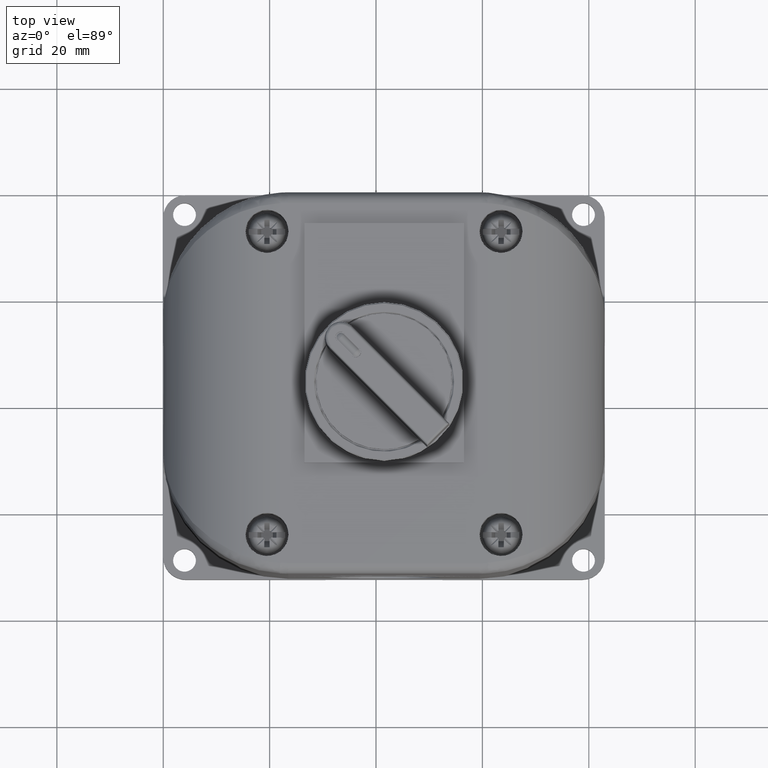
[diagram: clean part render]
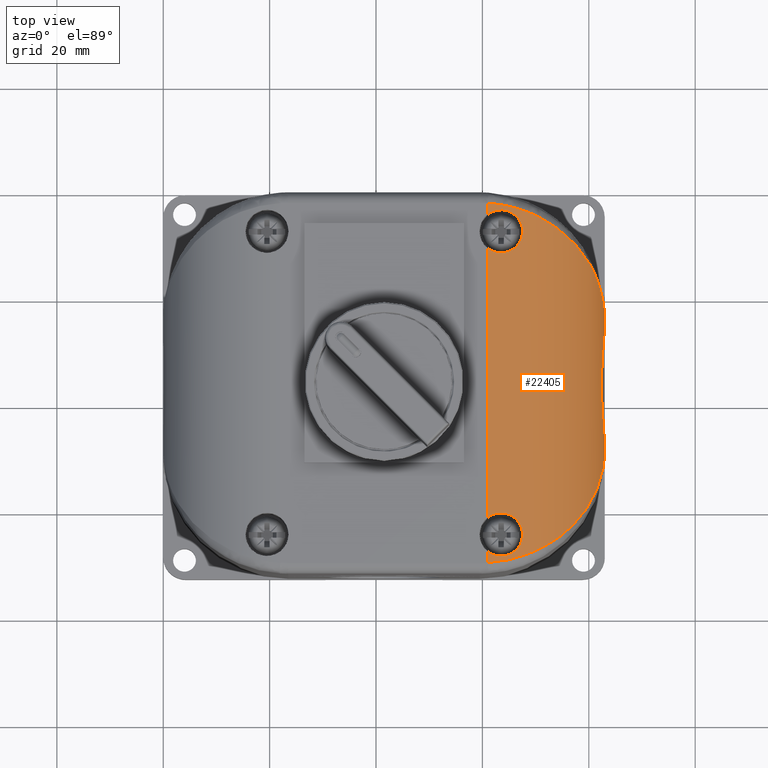
[diagram: same view with one face highlighted and labeled with its STEP entity id]
A machine part, top view. The second image highlights one B-rep face of the part: STEP entity #22405.
In plain terms, the highlighted cylindrical surface (partial cylindrical patch) has radius 22 mm, axis along (0, 1, 0).
Its self-contained STEP definition (entity closure, byte-faithful):
#99 = B_SPLINE_CURVE_WITH_KNOTS ( 'NONE', 3,
 ( #10861, #20196, #14949, #3558, #18802, #1574, #9255, #18558, #24516, #18324, #16689, #3207, #24278, #1457, #5411, #16813, #11089, #12711, #22547, #18677, #13071, #20670, #18443, #1343, #1826, #16933 ),
 .UNSPECIFIED., .F., .F.,
 ( 4, 2, 2, 2, 2, 2, 2, 2, 2, 2, 2, 2, 4 ),
 ( 1.334722892048455470E-16, 0.001134861824668698810, 0.001702292737002971453, 0.002269723649337223714, 0.002837154561671475974, 0.003404585474005728668, 0.004539447298674233189, 0.005106878211008509735, 0.005674309123342786282, 0.006809170948011322895, 0.007944032772679857773, 0.008511463685014125646, 0.009078894597348393519 ),
 .UNSPECIFIED. ) ;
#176 = CARTESIAN_POINT ( 'NONE',  ( 3.265404575038634238, -0.9051935461866198462, 1.295541807410427904 ) ) ;
#224 = CARTESIAN_POINT ( 'NONE',  ( 3.246916240781681395, -1.268746269353562051, 1.421073909155595949 ) ) ;
#298 = CARTESIAN_POINT ( 'NONE',  ( 3.265698535053056073, -0.9152756871707017350, 1.291380827273003185 ) ) ;
#339 = B_SPLINE_CURVE_WITH_KNOTS ( 'NONE', 3,
 ( #665, #4859, #13798, #7976, #19992, #8224, #18238, #6353, #13677, #1253, #23257, #15777, #21984, #20115, #19389, #23368, #3008, #8807, #3127, #6118, #13551, #10538, #11682, #19271, #17525, #21385 ),
 .UNSPECIFIED., .F., .F.,
 ( 4, 2, 2, 2, 2, 2, 2, 2, 2, 2, 2, 2, 4 ),
 ( 1.334722892048455470E-16, 0.001134861824668662381, 0.001702292737002935675, 0.002269723649337189019, 0.002837154561671442147, 0.003404585474005695708, 0.004539447298674204566, 0.005106878211008480245, 0.005674309123342755924, 0.006809170948011302946, 0.007944032772679849100, 0.008511463685014123912, 0.009078894597348396989 ),
 .UNSPECIFIED. ) ;
#417 = CARTESIAN_POINT ( 'NONE',  ( 3.261533460408405638, -0.8520517123228971146, 1.335593132237050451 ) ) ;
#665 = CARTESIAN_POINT ( 'NONE',  ( 2.401574803149604254, -0.1756531276583662704, 2.098425196850787433 ) ) ;
#746 = VERTEX_POINT ( 'NONE', #7047 ) ;
#787 = CARTESIAN_POINT ( 'NONE',  ( 3.211403584411341772, -0.6499550670571786481, 1.539495812780744544 ) ) ;
#834 = CARTESIAN_POINT ( 'NONE',  ( 3.224408995451466087, -2.161029592972630642, 1.502804874604040553 ) ) ;
#914 = CARTESIAN_POINT ( 'NONE',  ( 3.014916225607195521, -0.3572907007955891667, 1.844476032022297041 ) ) ;
#998 = DIRECTION ( 'NONE',  ( -0.000000000000000000, 1.000000000000000000, 0.000000000000000000 ) ) ;
#1036 = EDGE_CURVE ( 'NONE', #10325, #4337, #99, .T. ) ;
#1038 = CARTESIAN_POINT ( 'NONE',  ( 3.253581560407081241, -0.7972325579423396036, 1.388155249814208902 ) ) ;
#1085 = CARTESIAN_POINT ( 'NONE',  ( 3.262143839381956845, -1.988699912605852438, 1.330589693092279147 ) ) ;
#1137 = EDGE_CURVE ( 'NONE', #19132, #4094, #9860, .T. ) ;
#1162 = CARTESIAN_POINT ( 'NONE',  ( 3.116581200251230310, -0.4752133043386753131, 1.721821775155810252 ) ) ;
#1207 = CARTESIAN_POINT ( 'NONE',  ( 3.264538597260197683, -1.958666754404544852, 1.306411850927976293 ) ) ;
#1253 = CARTESIAN_POINT ( 'NONE',  ( 2.513393136299193920, -0.1420740433886582277, 2.091209826527814730 ) ) ;
#1291 = CARTESIAN_POINT ( 'NONE',  ( 3.234947611988189031, -0.7185866174914208315, 1.468282772683580095 ) ) ;
#1343 = CARTESIAN_POINT ( 'NONE',  ( 2.658679138886878235, -2.530287315607976151, 2.059386875227419811 ) ) ;
#1457 = CARTESIAN_POINT ( 'NONE',  ( 2.576593409757097053, -2.405267626370858114, 2.080584779871273771 ) ) ;
#1487 = CARTESIAN_POINT ( 'NONE',  ( 2.722660372092903902, -2.679450240766227065, 2.036873089652111002 ) ) ;
#1511 = CARTESIAN_POINT ( 'NONE',  ( 2.542669575816503880, -0.4553276970491240694, 2.086983220119175808 ) ) ;
#1574 = CARTESIAN_POINT ( 'NONE',  ( 2.468875781667798641, -2.388643250060210832, 2.095836973709894302 ) ) ;
#1595 = CARTESIAN_POINT ( 'NONE',  ( 3.084950974714748551, -2.413793780902832697, 1.766651555993284273 ) ) ;
#1616 = CARTESIAN_POINT ( 'NONE',  ( 2.401574803149604254, -0.1756531276583662704, 2.098425196850787433 ) ) ;
#1617 = DIRECTION ( 'NONE',  ( -0.000000000000000000, 1.000000000000000000, 0.000000000000000000 ) ) ;
#1643 = CARTESIAN_POINT ( 'NONE',  ( 2.784434683786902731, -0.1951204018283026476, 2.009214132178566370 ) ) ;
#1729 = CARTESIAN_POINT ( 'NONE',  ( 3.048866991096050860, -2.453471018583604391, 1.807800523673638304 ) ) ;
#1803 = CARTESIAN_POINT ( 'NONE',  ( 3.264304003964328516, -1.825826770599808135, 1.312786665741844772 ) ) ;
#1826 = CARTESIAN_POINT ( 'NONE',  ( 2.659199162521964421, -2.537710840295322345, 2.059224326939192551 ) ) ;
#1851 = CARTESIAN_POINT ( 'NONE',  ( 3.209237448971808071, -2.201847995331116969, 1.545147290964657971 ) ) ;
#1974 = CARTESIAN_POINT ( 'NONE',  ( 3.208178408958344718, -2.204469314860726392, 1.547873401822762229 ) ) ;
#1981 = CARTESIAN_POINT ( 'NONE',  ( 3.261931588086456557, -1.053020132146092358, 1.333929234802425423 ) ) ;
#1996 = CARTESIAN_POINT ( 'NONE',  ( 2.617014466615705359, -0.4093696796499521340, 2.071218146206070365 ) ) ;
#2017 = LINE ( 'NONE', #9560, #19320 ) ;
#2106 = CARTESIAN_POINT ( 'NONE',  ( 3.244141831481595961, -1.345329254579085587, 1.432994763971830787 ) ) ;
#2184 = CARTESIAN_POINT ( 'NONE',  ( 3.265559621595654161, -0.9100975798091842650, 1.293372028446158506 ) ) ;
#2227 = CARTESIAN_POINT ( 'NONE',  ( 3.261125659975437685, -1.997856196391115446, 1.338934188117357316 ) ) ;
#2289 = DIRECTION ( 'NONE',  ( 0.000000000000000000, 1.000000000000000000, 0.000000000000000000 ) ) ;
#2352 = CARTESIAN_POINT ( 'NONE',  ( 3.249418618692938132, -2.070010648337430759, 1.409387014528677984 ) ) ;
#2423 = CARTESIAN_POINT ( 'NONE',  ( 3.260284757183267601, -0.8407823607793120102, 1.345854991002045864 ) ) ;
#2599 = CARTESIAN_POINT ( 'NONE',  ( 3.240120900210513799, -2.109311697198949176, 1.449499018110503190 ) ) ;
#2673 = CARTESIAN_POINT ( 'NONE',  ( 2.984665937025283711, -0.3297389721143291763, 1.872906376220347058 ) ) ;
#2739 = EDGE_CURVE ( 'NONE', #9817, #19132, #21156, .T. ) ;
#2789 = CARTESIAN_POINT ( 'NONE',  ( 3.255256975148223653, -0.8066475089956013367, 1.378804314267621844 ) ) ;
#2915 = CARTESIAN_POINT ( 'NONE',  ( 3.234292338125978272, -0.7163636040684386863, 1.470576650997017065 ) ) ;
#2985 = CARTESIAN_POINT ( 'NONE',  ( 2.630854445261456398, -2.636221148376215684, 2.067537269189749782 ) ) ;
#3008 = CARTESIAN_POINT ( 'NONE',  ( 2.601015624993987974, -0.1776850800264913322, 2.075169313886291889 ) ) ;
#3039 = CARTESIAN_POINT ( 'NONE',  ( 3.250699855379799441, -0.7823085943282255261, 1.403129808930588363 ) ) ;
#3127 = CARTESIAN_POINT ( 'NONE',  ( 2.626900827036907859, -0.2037001733549982929, 2.068643163140310381 ) ) ;
#3156 = CARTESIAN_POINT ( 'NONE',  ( 3.160107092039146526, -0.5436324238325108693, 1.650454988016291757 ) ) ;
#3207 = CARTESIAN_POINT ( 'NONE',  ( 2.542515016304399023, -2.390873887159418398, 2.087007149983038268 ) ) ;
#3279 = CARTESIAN_POINT ( 'NONE',  ( 2.722954377266189052, -0.1664587572626944900, 2.037226366823465806 ) ) ;
#3342 = CARTESIAN_POINT ( 'NONE',  ( 2.656561117412512107, -2.575012676745648044, 2.060042306304008974 ) ) ;
#3356 = CARTESIAN_POINT ( 'NONE',  ( 2.707718693562267909, -2.685513913119756957, 2.042673445797811738 ) ) ;
#3399 = CARTESIAN_POINT ( 'NONE',  ( 2.605673103801147583, -0.1267654090364580821, 2.074035419141702974 ) ) ;
#3469 = CARTESIAN_POINT ( 'NONE',  ( 3.044716291670299668, -2.457956253068044994, 1.812449552676164588 ) ) ;
#3558 = CARTESIAN_POINT ( 'NONE',  ( 2.447196047995984447, -2.394557187080533112, 2.097250826054517070 ) ) ;
#3580 = CARTESIAN_POINT ( 'NONE',  ( 3.052408395411687625, -2.449601166355237059, 1.803787913149768940 ) ) ;
#3711 = CARTESIAN_POINT ( 'NONE',  ( 3.014425527166082919, -2.488940260339953525, 1.844503334232135972 ) ) ;
#3786 = EDGE_CURVE ( 'NONE', #9817, #746, #14134, .T. ) ;
#3840 = CARTESIAN_POINT ( 'NONE',  ( 3.252764249701070032, -1.175578275525553051, 1.392656594265216929 ) ) ;
#3858 = CARTESIAN_POINT ( 'NONE',  ( 2.476358661653605520, -0.4588906863112868217, 2.095222525144633252 ) ) ;
#3888 = ORIENTED_EDGE ( 'NONE', *, *, #16811, .T. ) ;
#3912 = CARTESIAN_POINT ( 'NONE',  ( 3.264741905503198982, -0.8910037520799722888, 1.304010267330316886 ) ) ;
#3961 = CARTESIAN_POINT ( 'NONE',  ( 3.243986775593869165, -1.501315823974023411, 1.433743545148280063 ) ) ;
#4094 = VERTEX_POINT ( 'NONE', #20325 ) ;
#4150 = AXIS2_PLACEMENT_3D ( 'NONE', #23000, #2289, #9826 ) ;
#4284 = CARTESIAN_POINT ( 'NONE',  ( 3.261388886750414606, -0.8507358148511436902, 1.336788259634980269 ) ) ;
#4330 = CARTESIAN_POINT ( 'NONE',  ( 3.246325512263653845, -2.084127772751617869, 1.423735575630447281 ) ) ;
#4337 = VERTEX_POINT ( 'NONE', #9546 ) ;
#4400 = CARTESIAN_POINT ( 'NONE',  ( 3.265521307670927076, -0.9088467583060406696, 1.293910971693332801 ) ) ;
#4449 = CARTESIAN_POINT ( 'NONE',  ( 3.260363138770068225, -2.004378109624662674, 1.344950360793587985 ) ) ;
#4530 = CARTESIAN_POINT ( 'NONE',  ( 3.201034646951566032, -0.6240027018628380162, 1.566555334427148116 ) ) ;
#4579 = CARTESIAN_POINT ( 'NONE',  ( 3.250246559280750791, -2.066042603269500066, 1.405366622927611608 ) ) ;
#4651 = CARTESIAN_POINT ( 'NONE',  ( 3.220716979347994169, -0.6746482443477958002, 1.513786743370503451 ) ) ;
#4768 = CARTESIAN_POINT ( 'NONE',  ( 3.210606187184909643, -0.6479465277111584598, 1.541589747267571919 ) ) ;
#4813 = CARTESIAN_POINT ( 'NONE',  ( 3.264778051677498460, -1.954735588945603730, 1.303618008707217335 ) ) ;
#4844 = CARTESIAN_POINT ( 'NONE',  ( 2.535560287805067148, -2.736236682919041652, 2.088165360058191755 ) ) ;
#4859 = CARTESIAN_POINT ( 'NONE',  ( 2.413458876351760374, -0.1663267315003349733, 2.098425196850394414 ) ) ;
#4895 = CARTESIAN_POINT ( 'NONE',  ( 3.248232437310654142, -0.7702737956006510123, 1.415288741448876397 ) ) ;
#4960 = CARTESIAN_POINT ( 'NONE',  ( 2.542669575816504324, -2.699422185238101513, 2.086983220119176252 ) ) ;
#4972 = CARTESIAN_POINT ( 'NONE',  ( 2.775238489599895608, -2.655617235931694964, 2.013682297853302661 ) ) ;
#5018 = CARTESIAN_POINT ( 'NONE',  ( 3.054198358625548337, -0.3984575900242663948, 1.801742989362116631 ) ) ;
#5175 = CARTESIAN_POINT ( 'NONE',  ( 3.263786859148512853, -1.969742139657295388, 1.314726999360762871 ) ) ;
#5312 = CARTESIAN_POINT ( 'NONE',  ( 2.468932394693459376, -2.701699833163988096, 2.095832879722906661 ) ) ;
#5322 = CARTESIAN_POINT ( 'NONE',  ( 2.779802317235763098, -2.653377417332058563, 2.011479014497544515 ) ) ;
#5345 = CARTESIAN_POINT ( 'NONE',  ( 2.401574803149604254, -0.4264879033823556487, 2.098425196850787433 ) ) ;
#5411 = CARTESIAN_POINT ( 'NONE',  ( 2.582937071548314645, -2.408940647676415470, 2.079247596894479244 ) ) ;
#5573 = CARTESIAN_POINT ( 'NONE',  ( 2.654995267344636201, -0.3381958324352756229, 2.060525093719621559 ) ) ;
#5596 = CARTESIAN_POINT ( 'NONE',  ( 2.883935232303584506, -0.2520787802517179266, 1.952291133547743751 ) ) ;
#5679 = CARTESIAN_POINT ( 'NONE',  ( 3.114680695427916923, -2.375402680520445564, 1.726534015020033008 ) ) ;
#5684 = CARTESIAN_POINT ( 'NONE',  ( 3.250308422935292541, -1.634011347818775439, 1.405183800287110873 ) ) ;
#5701 = CARTESIAN_POINT ( 'NONE',  ( 2.491117104733515664, -0.4603959840040371398, 2.093816182454376396 ) ) ;
#5723 = ORIENTED_EDGE ( 'NONE', *, *, #24099, .T. ) ;
#5753 = CARTESIAN_POINT ( 'NONE',  ( 3.265609840346506143, -0.9118371909029657774, 1.292659217011799422 ) ) ;
#5821 = CARTESIAN_POINT ( 'NONE',  ( 2.630854445261456398, -0.3921266601872400170, 2.067537269189749782 ) ) ;
#5875 = CARTESIAN_POINT ( 'NONE',  ( 3.265845720700356392, -0.9238149993118608405, 1.289187725183639222 ) ) ;
#5903 = LINE ( 'NONE', #13455, #11948 ) ;
#5984 = FACE_OUTER_BOUND ( 'NONE', #22452, .T. ) ;
#6118 = CARTESIAN_POINT ( 'NONE',  ( 2.642767798214620711, -0.2290015350871678623, 2.064206118165317960 ) ) ;
#6124 = CARTESIAN_POINT ( 'NONE',  ( 3.265755436328508399, -0.9181531538233389522, 1.290537537307365534 ) ) ;
#6353 = CARTESIAN_POINT ( 'NONE',  ( 2.490967049264921851, -0.1417528788743487311, 2.093831852209592448 ) ) ;
#6361 = CARTESIAN_POINT ( 'NONE',  ( 3.250571372088789435, -0.7816781633838439936, 1.403766330521868833 ) ) ;
#6490 = CARTESIAN_POINT ( 'NONE',  ( 3.145488084176855992, -0.5192426645756701431, 1.675898917381087871 ) ) ;
#6609 = CARTESIAN_POINT ( 'NONE',  ( 3.146442623731326549, -0.5207803344757439001, 1.674295236152615329 ) ) ;
#6684 = CARTESIAN_POINT ( 'NONE',  ( 2.755989081656508688, -2.664787013593603149, 2.022667130593615248 ) ) ;
#6730 = CARTESIAN_POINT ( 'NONE',  ( 2.958847662260158717, -0.3078760174144264949, 1.895378531863006977 ) ) ;
#6812 = CARTESIAN_POINT ( 'NONE',  ( 2.883865762059846904, -2.593812554369276491, 1.951880499736209584 ) ) ;
#6861 = CARTESIAN_POINT ( 'NONE',  ( 3.251578865151983244, -0.7866878760425995987, 1.398715638915980275 ) ) ;
#6926 = CARTESIAN_POINT ( 'NONE',  ( 2.413450445584815363, -2.679902171422722912, 2.098425196850393970 ) ) ;
#6936 = CARTESIAN_POINT ( 'NONE',  ( 2.600799967766164400, -2.720834575484453399, 2.075202081263997744 ) ) ;
#6969 = EDGE_CURVE ( 'NONE', #4094, #15154, #7923, .T. ) ;
#6987 = CARTESIAN_POINT ( 'NONE',  ( 2.603759304652442541, -0.1262422395406327391, 2.074497152838111536 ) ) ;
#7034 = CARTESIAN_POINT ( 'NONE',  ( 3.265459950832562352, -1.939271766175720169, 1.294765558874596323 ) ) ;
#7047 = CARTESIAN_POINT ( 'NONE',  ( 2.401574803149604254, -2.670582391571332259, 2.098425196850787433 ) ) ;
#7055 = B_SPLINE_CURVE_WITH_KNOTS ( 'NONE', 3,
 ( #19277, #15668, #5875, #6124, #298, #5753, #2184, #23265, #4400, #11931, #176, #13305, #23146, #23014, #3912, #11439, #21022, #7743, #9961, #22899, #19158, #7858, #9839, #15414, #13558, #17400, #417, #15542, #13686, #4284, #19396, #2423, #12429, #12293, #2789, #1038, #12547, #6861, #10322, #3039, #6361, #14293, #18271, #4895, #16155, #13924, #23375, #22016, #1291, #2915, #15784, #8347, #20148, #21529, #4651, #20024, #23629, #17774, #787, #21650, #4768, #4530, #10690, #15902, #21886, #3156, #10572, #12057, #18145, #6609, #23504, #6490, #12173, #19893, #1162, #8711, #16277, #14051, #19775, #23752, #14433, #23879, #5018, #17897, #8595, #19655, #914, #2673, #10449, #6730, #8471, #16029, #10203, #14173, #21766, #18024, #22382, #22502, #5596, #20391, #10932, #7345, #8842, #24116, #20746, #1643, #20615, #22141, #18627, #14789, #3279, #16640, #18751, #13023, #20263, #12788, #10815, #3399, #6987, #14666, #7225, #18870, #13148 ),
 .UNSPECIFIED., .F., .F.,
 ( 4, 2, 1, 1, 1, 2, 2, 2, 1, 1, 1, 2, 2, 2, 2, 1, 1, 1, 1, 2, 2, 2, 2, 1, 1, 1, 1, 2, 2, 2, 1, 1, 1, 2, 2, 2, 1, 1, 1, 2, 2, 2, 2, 1, 1, 1, 1, 2, 2, 2, 2, 1, 1, 1, 1, 2, 2, 2, 2, 1, 1, 1, 1, 2, 2, 2, 2, 1, 1, 1, 1, 2, 2, 2, 2, 1, 1, 1, 2, 2, 4 ),
 ( 0.000000000000000000, 0.007812499999999616626, 0.01171874999999955765, 0.01367187499999961316, 0.01464843749999974673, 0.01513671874999969989, 0.01562499999999965306, 0.02343749999999873712, 0.02734374999999836936, 0.02929687499999832773, 0.03027343749999840405, 0.03076171874999851855, 0.03124999999999863304, 0.04687499999999368561, 0.05468749999999134026, 0.05859374999999017453, 0.06054687499998955003, 0.06152343749998896716, 0.06201171874998890471, 0.06225585937498888389, 0.06249999999998885614, 0.09374999999998176459, 0.1093749999999779898, 0.1171874999999759498, 0.1210937499999749783, 0.1230468749999744787, 0.1240234374999744510, 0.1245117187499746869, 0.1249999999999749090, 0.1562499999999825140, 0.1718749999999861222, 0.1796874999999878431, 0.1835937499999887035, 0.1855468749999893141, 0.1874999999999899247, 0.2187500000000020539, 0.2343750000000082712, 0.2421875000000111855, 0.2460937500000128508, 0.2480468750000136835, 0.2500000000000145439, 0.3125000000000516254, 0.3437500000000699996, 0.3593750000000791589, 0.3671875000000837663, 0.3710937500000858758, 0.3730468750000869305, 0.3740234375000873190, 0.3750000000000877076, 0.4375000000001207923, 0.4687500000001373901, 0.4843750000001452172, 0.4921875000001495470, 0.4960937500001517675, 0.4980468750001527667, 0.4990234375001532108, 0.5000000000001536549, 0.5625000000001764144, 0.5937500000001879608, 0.6093750000001940670, 0.6171875000001967315, 0.6210937500001980638, 0.6230468750001987299, 0.6240234375001986189, 0.6250000000001986189, 0.6875000000001706413, 0.7187500000001570966, 0.7343750000001506573, 0.7421875000001475486, 0.7460937500001454392, 0.7480468750001443290, 0.7490234375001438849, 0.7500000000001433298, 0.8125000000001204592, 0.8437500000001085798, 0.8593750000001025846, 0.8671875000000991429, 0.8710937500000973666, 0.8730468750000959233, 0.8750000000000944800, 1.000000000000000000 ),
 .UNSPECIFIED. ) ;
#7066 = CARTESIAN_POINT ( 'NONE',  ( 2.632260934178599410, -2.712335254165648468, 2.067728640422219488 ) ) ;
#7177 = CARTESIAN_POINT ( 'NONE',  ( 2.518881905125807119, -2.739415039935476415, 2.090609695621554298 ) ) ;
#7203 = CARTESIAN_POINT ( 'NONE',  ( 2.454388470373221054, -0.4540078010003020803, 2.096844251388313651 ) ) ;
#7225 = CARTESIAN_POINT ( 'NONE',  ( 2.535890333196159752, -0.1079068621314974025, 2.090628700056198497 ) ) ;
#7345 = CARTESIAN_POINT ( 'NONE',  ( 2.814071581677079159, -0.2105623829994623664, 1.993927688369900419 ) ) ;
#7422 = CARTESIAN_POINT ( 'NONE',  ( 3.051819117145103455, -2.450247614257250017, 1.804458290719974434 ) ) ;
#7489 = CARTESIAN_POINT ( 'NONE',  ( 3.256803343748177149, -1.725144759640337089, 1.370589834708397126 ) ) ;
#7541 = CARTESIAN_POINT ( 'NONE',  ( 3.254084758597642235, -1.157293033147775541, 1.385550100377879401 ) ) ;
#7559 = CARTESIAN_POINT ( 'NONE',  ( 2.656561117412511663, -0.3309181885566717662, 2.060042306304008974 ) ) ;
#7686 = CARTESIAN_POINT ( 'NONE',  ( 2.513299169312456449, -0.4600724146056892616, 2.091221580168188598 ) ) ;
#7743 = CARTESIAN_POINT ( 'NONE',  ( 3.264581076583841224, -0.8882596634098809396, 1.305915650481825230 ) ) ;
#7858 = CARTESIAN_POINT ( 'NONE',  ( 3.263037377680988005, -0.8673013707477652545, 1.322229943151677745 ) ) ;
#7904 = CARTESIAN_POINT ( 'NONE',  ( 3.261245495464170752, -1.996792885639098625, 1.337961924306562356 ) ) ;
#7923 = B_SPLINE_CURVE_WITH_KNOTS ( 'NONE', 3,
 ( #11193, #1803, #24493, #7489, #15040, #5684, #13237, #20831, #20955, #3961, #11483, #13358, #19077, #2106, #9644, #224, #24547, #3840, #7541, #18957, #15093, #1981, #22704, #9522 ),
 .UNSPECIFIED., .F., .F.,
 ( 4, 2, 2, 2, 2, 2, 2, 2, 2, 2, 2, 4 ),
 ( 0.000000000000000000, 0.002953563514493775903, 0.005907127028987551806, 0.007383908786234434120, 0.008860690543481316434, 0.01181425405797508106, 0.01329103581522197465, 0.01476781757246886650, 0.01772138108696266756, 0.01919816284420956809, 0.02067494460145647209, 0.02362850811595026967 ),
 .UNSPECIFIED. ) ;
#7976 = CARTESIAN_POINT ( 'NONE',  ( 2.447196047995985779, -0.1504626988915566677, 2.097250826054518402 ) ) ;
#8224 = CARTESIAN_POINT ( 'NONE',  ( 2.468875781667798197, -0.1445487618712342770, 2.095836973709894302 ) ) ;
#8279 = CARTESIAN_POINT ( 'NONE',  ( 3.227215193048561304, -2.152678028530991661, 1.494168895094552862 ) ) ;
#8347 = CARTESIAN_POINT ( 'NONE',  ( 3.233615857010765815, -0.7140855401026400262, 1.472927898648923595 ) ) ;
#8393 = CARTESIAN_POINT ( 'NONE',  ( 3.260879862321163891, -2.000003110569641862, 1.340904814431487235 ) ) ;
#8471 = CARTESIAN_POINT ( 'NONE',  ( 2.951007871570922259, -0.3015022192446490945, 1.901914107584226743 ) ) ;
#8550 = CARTESIAN_POINT ( 'NONE',  ( 2.435117163370285720, -2.751518809154368750, 2.098425196850393082 ) ) ;
#8589 = CARTESIAN_POINT ( 'NONE',  ( 2.401574803149604254, -2.419747615847342548, 2.098425196850787433 ) ) ;
#8595 = CARTESIAN_POINT ( 'NONE',  ( 3.053454056399406813, -0.3976380694145107975, 1.802594902865833237 ) ) ;
#8638 = CARTESIAN_POINT ( 'NONE',  ( 3.264479651567679941, -1.959621746129169617, 1.307095417525971470 ) ) ;
#8657 = CARTESIAN_POINT ( 'NONE',  ( 2.642616094427816975, -2.617495240237257548, 2.064249139571172620 ) ) ;
#8668 = CARTESIAN_POINT ( 'NONE',  ( 2.807871551076819294, -2.639464060688102354, 1.997775163397070175 ) ) ;
#8711 = CARTESIAN_POINT ( 'NONE',  ( 3.093515117220452471, -0.4448853754032575658, 1.753426634361375136 ) ) ;
#8775 = CARTESIAN_POINT ( 'NONE',  ( 2.454388470373222386, -2.698102289189279634, 2.096844251388315428 ) ) ;
#8791 = CARTESIAN_POINT ( 'NONE',  ( 2.401574803149606918, -2.753666616672483247, 2.098425196850393082 ) ) ;
#8807 = CARTESIAN_POINT ( 'NONE',  ( 2.617425922562789609, -0.1924681156977341157, 2.071173551909853749 ) ) ;
#8842 = CARTESIAN_POINT ( 'NONE',  ( 2.804378162587062739, -0.2053324363684312093, 1.999124064514116617 ) ) ;
#8903 = CARTESIAN_POINT ( 'NONE',  ( 2.611819372911933002, -2.658828989312869151, 2.072539602161938443 ) ) ;
#8972 = ORIENTED_EDGE ( 'NONE', *, *, #11119, .T. ) ;
#9024 = CARTESIAN_POINT ( 'NONE',  ( 2.600885748644020001, -2.668656178478068686, 2.075200010190962008 ) ) ;
#9085 = ORIENTED_EDGE ( 'NONE', *, *, #6969, .T. ) ;
#9148 = CARTESIAN_POINT ( 'NONE',  ( 3.154495371393710723, -2.312969503172205954, 1.661192135817041171 ) ) ;
#9150 = ORIENTED_EDGE ( 'NONE', *, *, #2739, .T. ) ;
#9255 = CARTESIAN_POINT ( 'NONE',  ( 2.476188193641866153, -2.387369856942917146, 2.095237368245719711 ) ) ;
#9514 = CARTESIAN_POINT ( 'NONE',  ( 3.210155764082456287, -2.199556267369148888, 1.542764493355562427 ) ) ;
#9522 = CARTESIAN_POINT ( 'NONE',  ( 3.265874923253243356, -0.9893373802624196856, 1.288735238603178734 ) ) ;
#9546 = CARTESIAN_POINT ( 'NONE',  ( 2.659199162521963977, -2.545165003709337626, 2.059224326939192551 ) ) ;
#9547 = CARTESIAN_POINT ( 'NONE',  ( 3.265874923253243356, -0.9893373802624196856, 1.288735238603178734 ) ) ;
#9560 = CARTESIAN_POINT ( 'NONE',  ( 2.401574803149606474, -1.423117759614849209, 2.098425196850393970 ) ) ;
#9644 = CARTESIAN_POINT ( 'NONE',  ( 3.244713668635756942, -1.326072069829616673, 1.430598802716653850 ) ) ;
#9817 = VERTEX_POINT ( 'NONE', #16174 ) ;
#9826 = DIRECTION ( 'NONE',  ( 0.000000000000000000, 0.000000000000000000, 1.000000000000000000 ) ) ;
#9839 = CARTESIAN_POINT ( 'NONE',  ( 3.262749508385140551, -0.8640902287971231610, 1.324955283225414115 ) ) ;
#9860 = LINE ( 'NONE', #15434, #11107 ) ;
#9887 = CARTESIAN_POINT ( 'NONE',  ( 3.250144418260618728, -2.066536986669454290, 1.405867196300893296 ) ) ;
#9961 = CARTESIAN_POINT ( 'NONE',  ( 3.264563313089420049, -0.8879660592286553467, 1.306123470585642377 ) ) ;
#10019 = CARTESIAN_POINT ( 'NONE',  ( 3.232943951292965412, -2.134324958313053688, 1.475239059624427140 ) ) ;
#10135 = CARTESIAN_POINT ( 'NONE',  ( 3.261304656953763814, -1.996263766847401255, 1.337479056268163102 ) ) ;
#10181 = VERTEX_POINT ( 'NONE', #11920 ) ;
#10203 = CARTESIAN_POINT ( 'NONE',  ( 2.937140016935576803, -0.2906629795228685698, 1.913001011888871616 ) ) ;
#10251 = CARTESIAN_POINT ( 'NONE',  ( 3.214564557510352749, -2.188497527589314817, 1.531267943547761634 ) ) ;
#10322 = CARTESIAN_POINT ( 'NONE',  ( 3.250996723530608090, -0.7837747805942159030, 1.401650513134651943 ) ) ;
#10325 = VERTEX_POINT ( 'NONE', #8589 ) ;
#10449 = CARTESIAN_POINT ( 'NONE',  ( 2.974422445267385751, -0.3208292673541958684, 1.882078439005523851 ) ) ;
#10494 = CARTESIAN_POINT ( 'NONE',  ( 3.265411628674960820, -1.940672388845533058, 1.295431726232852077 ) ) ;
#10511 = CARTESIAN_POINT ( 'NONE',  ( 2.582969346292059321, -2.681368057654125892, 2.079240498308626339 ) ) ;
#10538 = CARTESIAN_POINT ( 'NONE',  ( 2.655007758894980086, -0.2639892569860727844, 2.060521301903373903 ) ) ;
#10572 = CARTESIAN_POINT ( 'NONE',  ( 3.155687434080496345, -0.5360140322544735270, 1.658404576001429431 ) ) ;
#10635 = CARTESIAN_POINT ( 'NONE',  ( 2.659199162521964421, -2.552612788435690394, 2.059224326939192107 ) ) ;
#10690 = CARTESIAN_POINT ( 'NONE',  ( 3.190851031137635907, -0.6016775371080932411, 1.589864798488252573 ) ) ;
#10693 = VERTEX_POINT ( 'NONE', #21017 ) ;
#10815 = CARTESIAN_POINT ( 'NONE',  ( 2.608543182956537976, -0.1275546363680228057, 2.073337789469105186 ) ) ;
#10861 = CARTESIAN_POINT ( 'NONE',  ( 2.401574803149604254, -2.419747615847342548, 2.098425196850787433 ) ) ;
#10874 = CARTESIAN_POINT ( 'NONE',  ( 2.491117104733516552, -2.704490472193014750, 2.093816182454377284 ) ) ;
#10932 = CARTESIAN_POINT ( 'NONE',  ( 2.833369573921209472, -0.2212656189762447767, 1.983263383417757320 ) ) ;
#11089 = CARTESIAN_POINT ( 'NONE',  ( 2.601015624993990194, -2.421779568215467915, 2.075169313886292333 ) ) ;
#11107 = VECTOR ( 'NONE', #17420, 39.37007874015748143 ) ;
#11112 = CARTESIAN_POINT ( 'NONE',  ( 3.166969289492985062, -2.291350689593682599, 1.638554222618894052 ) ) ;
#11119 = EDGE_CURVE ( 'NONE', #4337, #746, #12350, .T. ) ;
#11140 = CARTESIAN_POINT ( 'NONE',  ( 2.659199162521964421, -0.3085183002467144497, 2.059224326939192551 ) ) ;
#11193 = CARTESIAN_POINT ( 'NONE',  ( 3.265874923253243356, -1.856898138967278511, 1.288735238603179178 ) ) ;
#11241 = CARTESIAN_POINT ( 'NONE',  ( 3.201675806645101208, -2.220081275098948925, 1.564122893273770520 ) ) ;
#11363 = CARTESIAN_POINT ( 'NONE',  ( 3.209689034261066443, -2.200722797824456567, 1.543977328304426910 ) ) ;
#11384 = CARTESIAN_POINT ( 'NONE',  ( 2.447306903670244171, -0.4517142677311239418, 2.097244569625063448 ) ) ;
#11439 = CARTESIAN_POINT ( 'NONE',  ( 3.264649529687773111, -0.8894083321272765463, 1.305109949119666712 ) ) ;
#11478 = CARTESIAN_POINT ( 'NONE',  ( 2.930865228056429128, -2.560408902809058862, 1.917887845636276678 ) ) ;
#11483 = CARTESIAN_POINT ( 'NONE',  ( 3.243177900887542098, -1.462620658294044640, 1.436992346969368173 ) ) ;
#11612 = CARTESIAN_POINT ( 'NONE',  ( 3.250314507054175461, -2.065713190905833052, 1.405033122681822011 ) ) ;
#11682 = CARTESIAN_POINT ( 'NONE',  ( 2.656594061833322140, -0.2714072415871746080, 2.060032139637768100 ) ) ;
#11733 = CARTESIAN_POINT ( 'NONE',  ( 3.230342346482573568, -2.142826441071796761, 1.484001708587612045 ) ) ;
#11854 = CARTESIAN_POINT ( 'NONE',  ( 3.250338586806484020, -2.065596339797186598, 1.404914829143762312 ) ) ;
#11920 = CARTESIAN_POINT ( 'NONE',  ( 2.401574803149606474, -0.09256890255721408889, 2.098425196850393970 ) ) ;
#11931 = CARTESIAN_POINT ( 'NONE',  ( 3.265511668837258519, -0.9085413213601775118, 1.294045915063719132 ) ) ;
#11948 = VECTOR ( 'NONE', #20678, 39.37007874015748143 ) ;
#12057 = CARTESIAN_POINT ( 'NONE',  ( 3.150429309700685021, -0.5272724314255120559, 1.667523813347948192 ) ) ;
#12100 = EDGE_CURVE ( 'NONE', #17243, #10181, #13597, .T. ) ;
#12105 = CARTESIAN_POINT ( 'NONE',  ( 3.231868777265094916, -2.137873623439545678, 1.478895469450645317 ) ) ;
#12173 = CARTESIAN_POINT ( 'NONE',  ( 3.145321853610830498, -0.5189754488240347907, 1.676177599447648880 ) ) ;
#12219 = CARTESIAN_POINT ( 'NONE',  ( 3.261351122247922785, -1.995846283276069943, 1.337098500208773633 ) ) ;
#12293 = CARTESIAN_POINT ( 'NONE',  ( 3.256250807358730182, -0.8126891462024868895, 1.372864548756536074 ) ) ;
#12350 = B_SPLINE_CURVE_WITH_KNOTS ( 'NONE', 3,
 ( #24062, #10635, #24292, #3342, #16589, #22440, #8657, #2985, #14726, #14608, #8903, #9024, #23815, #10511, #14365, #21953, #4960, #18211, #18336, #18090, #10874, #22323, #5312, #8775, #16342, #23942, #6926, #14493 ),
 .UNSPECIFIED., .F., .F.,
 ( 4, 2, 2, 2, 2, 2, 2, 2, 2, 2, 2, 2, 2, 4 ),
 ( 0.009078894597348393519, 0.009645839946869178352, 0.01021278529638996319, 0.01134667599543154499, 0.01191362134495231942, 0.01248056669447309211, 0.01304751204399386480, 0.01361445739351463749, 0.01474834809255616899, 0.01531529344207691566, 0.01588223879159766233, 0.01644918414111840727, 0.01701612949063915220, 0.01815002018968064554 ),
 .UNSPECIFIED. ) ;
#12377 = CARTESIAN_POINT ( 'NONE',  ( 2.781215696863933218, -2.652678952372202748, 2.010791332540152077 ) ) ;
#12429 = CARTESIAN_POINT ( 'NONE',  ( 3.258919929742064348, -0.8301090673372759632, 1.355941405316240633 ) ) ;
#12470 = CARTESIAN_POINT ( 'NONE',  ( 3.265479748618238531, -1.938676333880462455, 1.294490809873801940 ) ) ;
#12547 = CARTESIAN_POINT ( 'NONE',  ( 3.252697643526734517, -0.7924369586049749836, 1.392941013407305695 ) ) ;
#12705 = CARTESIAN_POINT ( 'NONE',  ( 3.265874923253243356, -1.915243743866817727, 1.288735238603178734 ) ) ;
#12711 = CARTESIAN_POINT ( 'NONE',  ( 2.617425922562789165, -2.436562603886710310, 2.071173551909851973 ) ) ;
#12756 = EDGE_CURVE ( 'NONE', #10693, #16366, #18212, .T. ) ;
#12788 = CARTESIAN_POINT ( 'NONE',  ( 2.615235570769959050, -0.1294274784231327080, 2.071674771229002676 ) ) ;
#12885 = CARTESIAN_POINT ( 'NONE',  ( 2.659199162521963977, -0.3010705155203609040, 2.059224326939192551 ) ) ;
#12983 = CARTESIAN_POINT ( 'NONE',  ( 3.036354302616671497, -2.466830960045774290, 1.821642851351073400 ) ) ;
#13023 = CARTESIAN_POINT ( 'NONE',  ( 2.640022133523435510, -0.1368310576962645519, 2.064994166833721501 ) ) ;
#13071 = CARTESIAN_POINT ( 'NONE',  ( 2.648798503345863864, -2.486582870917082300, 2.062404331589687168 ) ) ;
#13095 = CARTESIAN_POINT ( 'NONE',  ( 3.197793190869647084, -2.228869873018581860, 1.573284218582950089 ) ) ;
#13121 = CARTESIAN_POINT ( 'NONE',  ( 2.626519744131780243, -0.3980716423996341069, 2.068719608081711403 ) ) ;
#13148 = CARTESIAN_POINT ( 'NONE',  ( 2.401574803149606474, -0.09256890255721408889, 2.098425196850393970 ) ) ;
#13229 = CARTESIAN_POINT ( 'NONE',  ( 2.929749179680935178, -2.561252364076532118, 1.918748957970615399 ) ) ;
#13237 = CARTESIAN_POINT ( 'NONE',  ( 3.249146729458853855, -1.615255121021166307, 1.410740652623072133 ) ) ;
#13305 = CARTESIAN_POINT ( 'NONE',  ( 3.265278617260955141, -0.9019059191146769905, 1.297255151919543881 ) ) ;
#13353 = CARTESIAN_POINT ( 'NONE',  ( 3.004484902821929371, -2.498426128946603431, 1.854290076701546219 ) ) ;
#13358 = CARTESIAN_POINT ( 'NONE',  ( 3.243172255426340023, -1.403785614494848621, 1.437015554840283871 ) ) ;
#13377 = CARTESIAN_POINT ( 'NONE',  ( 2.600885748644019557, -0.4245616902890926303, 2.075200010190961564 ) ) ;
#13455 = CARTESIAN_POINT ( 'NONE',  ( 3.265874923253242912, -1.423117759614849209, 1.288735238603178734 ) ) ;
#13472 = CARTESIAN_POINT ( 'NONE',  ( 2.921908877357109802, -2.567111361263874070, 1.924727407084065423 ) ) ;
#13551 = CARTESIAN_POINT ( 'NONE',  ( 2.648798503345863420, -0.2424883827281050785, 2.062404331589687168 ) ) ;
#13558 = CARTESIAN_POINT ( 'NONE',  ( 3.262016158391947585, -0.8565914116252927313, 1.331512118136521483 ) ) ;
#13597 = LINE ( 'NONE', #18600, #16518 ) ;
#13677 = CARTESIAN_POINT ( 'NONE',  ( 2.498491250797562735, -0.1415075731720764618, 2.093018637006753835 ) ) ;
#13686 = CARTESIAN_POINT ( 'NONE',  ( 3.261413171926887955, -0.8509556572733499857, 1.336588258938704143 ) ) ;
#13798 = CARTESIAN_POINT ( 'NONE',  ( 2.426360050401395352, -0.1588798469003995795, 2.098182146856145902 ) ) ;
#13924 = CARTESIAN_POINT ( 'NONE',  ( 3.241548818203928040, -0.7425108101810563577, 1.443660542482673392 ) ) ;
#14051 = CARTESIAN_POINT ( 'NONE',  ( 3.073633836461937996, -0.4206047577781262814, 1.778707514457650962 ) ) ;
#14134 = LINE ( 'NONE', #17986, #15882 ) ;
#14173 = CARTESIAN_POINT ( 'NONE',  ( 2.934816859713786030, -0.2888826818255160744, 1.914819655406062138 ) ) ;
#14219 = CARTESIAN_POINT ( 'NONE',  ( 3.264532056490843548, -1.958773233546220238, 1.306487872051135701 ) ) ;
#14246 = CARTESIAN_POINT ( 'NONE',  ( 2.780714253910909317, -2.652927101015726041, 2.011035693661577639 ) ) ;
#14293 = CARTESIAN_POINT ( 'NONE',  ( 3.250485436560139441, -0.7812574171094085473, 1.404191241788191435 ) ) ;
#14365 = CARTESIAN_POINT ( 'NONE',  ( 2.576554670678364634, -2.685086921912719582, 2.080593241783399439 ) ) ;
#14379 = CARTESIAN_POINT ( 'NONE',  ( 2.902253592843741181, -2.581218115406668012, 1.939091776891007646 ) ) ;
#14433 = CARTESIAN_POINT ( 'NONE',  ( 3.056785249114624126, -0.4013189038725017976, 1.798768353004203568 ) ) ;
#14476 = CARTESIAN_POINT ( 'NONE',  ( 3.264099469297124578, -1.965386894021874831, 1.311365492070991401 ) ) ;
#14493 = CARTESIAN_POINT ( 'NONE',  ( 2.401574803149604254, -2.670582391571332259, 2.098425196850787433 ) ) ;
#14592 = CARTESIAN_POINT ( 'NONE',  ( 3.264965357345203323, -1.951173184978943098, 1.301293271270089758 ) ) ;
#14608 = CARTESIAN_POINT ( 'NONE',  ( 2.617014466615706247, -2.653464167838928578, 2.071218146206070809 ) ) ;
#14619 = CARTESIAN_POINT ( 'NONE',  ( 2.594555973226015055, -2.722496953010224097, 2.076657535291548839 ) ) ;
#14666 = CARTESIAN_POINT ( 'NONE',  ( 2.602875431939914552, -0.1260019287732772608, 2.074708938570294592 ) ) ;
#14726 = CARTESIAN_POINT ( 'NONE',  ( 2.626519744131780687, -2.642166130588611050, 2.068719608081711847 ) ) ;
#14739 = CARTESIAN_POINT ( 'NONE',  ( 2.768836387447962011, -2.658716327001379387, 2.016725381031760911 ) ) ;
#14768 = CARTESIAN_POINT ( 'NONE',  ( 2.426621669742905496, -0.4433842582105148034, 2.098173010866301258 ) ) ;
#14789 = CARTESIAN_POINT ( 'NONE',  ( 2.752571516523663941, -0.1793144852573503867, 2.024776048028023911 ) ) ;
#14949 = CARTESIAN_POINT ( 'NONE',  ( 2.426360050401395352, -2.402974335089375746, 2.098182146856145458 ) ) ;
#14991 = ORIENTED_EDGE ( 'NONE', *, *, #23604, .T. ) ;
#15040 = CARTESIAN_POINT ( 'NONE',  ( 3.254037447145820217, -1.689624976302147585, 1.386153777391206265 ) ) ;
#15093 = CARTESIAN_POINT ( 'NONE',  ( 3.258075651662958538, -1.104200675462132075, 1.361488096049578322 ) ) ;
#15154 = VERTEX_POINT ( 'NONE', #9547 ) ;
#15214 = CARTESIAN_POINT ( 'NONE',  ( 2.974232477491871585, -2.526008196561742913, 1.882690984597411132 ) ) ;
#15235 = CARTESIAN_POINT ( 'NONE',  ( 2.468932394693458932, -0.4576053449750122626, 2.095832879722907105 ) ) ;
#15339 = CARTESIAN_POINT ( 'NONE',  ( 3.029086400282351210, -2.474273688327568443, 1.829343022275590869 ) ) ;
#15377 = DIRECTION ( 'NONE',  ( -0.000000000000000000, 1.000000000000000000, 0.000000000000000000 ) ) ;
#15401 = CYLINDRICAL_SURFACE ( 'NONE', #4150, 0.8661417322834645827 ) ;
#15414 = CARTESIAN_POINT ( 'NONE',  ( 3.262268772317990173, -0.8591170885666538082, 1.329286049414802884 ) ) ;
#15434 = CARTESIAN_POINT ( 'NONE',  ( 3.265874923253242912, -1.423117759614849209, 1.288735238603178734 ) ) ;
#15459 = CARTESIAN_POINT ( 'NONE',  ( 3.261346611095773174, -1.995886851566030407, 1.337135471938299514 ) ) ;
#15542 = CARTESIAN_POINT ( 'NONE',  ( 3.261449489283452685, -0.8512851153845805152, 1.336288729787346030 ) ) ;
#15668 = CARTESIAN_POINT ( 'NONE',  ( 3.265874815298529743, -0.9274654458818726299, 1.288736891434711263 ) ) ;
#15712 = CARTESIAN_POINT ( 'NONE',  ( 3.249904549445339352, -2.067692401917197831, 1.407037460368958826 ) ) ;
#15777 = CARTESIAN_POINT ( 'NONE',  ( 2.542515016304399023, -0.1467793989704413715, 2.087007149983038268 ) ) ;
#15784 = CARTESIAN_POINT ( 'NONE',  ( 3.233852336492401225, -0.7148789437164595473, 1.472108907856338522 ) ) ;
#15882 = VECTOR ( 'NONE', #998, 39.37007874015748143 ) ;
#15902 = CARTESIAN_POINT ( 'NONE',  ( 3.174468297999763156, -0.5695294258959621159, 1.623425528949620000 ) ) ;
#15956 = CARTESIAN_POINT ( 'NONE',  ( 3.232514952832206578, -2.135745196475155261, 1.476702263557138961 ) ) ;
#16029 = CARTESIAN_POINT ( 'NONE',  ( 2.941776290659053661, -0.2942460682800975835, 1.909338724286942623 ) ) ;
#16111 = CARTESIAN_POINT ( 'NONE',  ( 2.662643581715219643, -2.702539256606427909, 2.058759480501342498 ) ) ;
#16155 = CARTESIAN_POINT ( 'NONE',  ( 3.245769117269663440, -0.7593722292081080960, 1.426391472997972976 ) ) ;
#16174 = CARTESIAN_POINT ( 'NONE',  ( 2.401574803149606918, -2.753666616672483247, 2.098425196850393082 ) ) ;
#16202 = CARTESIAN_POINT ( 'NONE',  ( 3.265492746820150227, -1.938280453364341627, 1.294310033223829759 ) ) ;
#16231 = CARTESIAN_POINT ( 'NONE',  ( 2.871431640982035294, -2.601893763708907681, 1.960057990228869729 ) ) ;
#16277 = CARTESIAN_POINT ( 'NONE',  ( 3.085654128129855067, -0.4350242298800475749, 1.763697918781618190 ) ) ;
#16342 = CARTESIAN_POINT ( 'NONE',  ( 2.447306903670245504, -2.695808755920101163, 2.097244569625063892 ) ) ;
#16366 = VERTEX_POINT ( 'NONE', #23692 ) ;
#16477 = CARTESIAN_POINT ( 'NONE',  ( 2.560472506262284398, -2.730837811417176741, 2.083766950918710226 ) ) ;
#16518 = VECTOR ( 'NONE', #1617, 39.37007874015748143 ) ;
#16573 = CARTESIAN_POINT ( 'NONE',  ( 3.265762746766465163, -1.929845768180675547, 1.290538781698682858 ) ) ;
#16589 = CARTESIAN_POINT ( 'NONE',  ( 2.654995267344635312, -2.582290320624252900, 2.060525093719620671 ) ) ;
#16599 = CARTESIAN_POINT ( 'NONE',  ( 2.599698087296004712, -2.721130504810224782, 2.075461844032802983 ) ) ;
#16640 = CARTESIAN_POINT ( 'NONE',  ( 2.677919504619394875, -0.1494653862382603060, 2.053312823305066370 ) ) ;
#16689 = CARTESIAN_POINT ( 'NONE',  ( 2.520745050223455852, -2.386969504067317338, 2.090219218594269623 ) ) ;
#16811 = EDGE_CURVE ( 'NONE', #21125, #10181, #7055, .T. ) ;
#16813 = CARTESIAN_POINT ( 'NONE',  ( 2.595133129144398865, -2.417179422303715519, 2.076543903226812038 ) ) ;
#16833 = ORIENTED_EDGE ( 'NONE', *, *, #1036, .T. ) ;
#16835 = CARTESIAN_POINT ( 'NONE',  ( 3.189843501531548497, -2.246295614896138382, 1.591461552253544687 ) ) ;
#16857 = CARTESIAN_POINT ( 'NONE',  ( 2.611819372911932113, -0.4147345011238935397, 2.072539602161937999 ) ) ;
#16933 = CARTESIAN_POINT ( 'NONE',  ( 2.659199162521963977, -2.545165003709337626, 2.059224326939192551 ) ) ;
#16967 = EDGE_CURVE ( 'NONE', #10325, #16366, #2017, .T. ) ;
#16979 = CARTESIAN_POINT ( 'NONE',  ( 2.520764482247788596, -0.4592656171489705730, 2.090216910384535165 ) ) ;
#17243 = VERTEX_POINT ( 'NONE', #1616 ) ;
#17327 = CARTESIAN_POINT ( 'NONE',  ( 3.236951213646471093, -2.120926436227561496, 1.461439984537936887 ) ) ;
#17400 = CARTESIAN_POINT ( 'NONE',  ( 3.261698352887987262, -0.8535763515813159508, 1.334215156711011208 ) ) ;
#17420 = DIRECTION ( 'NONE',  ( 0.000000000000000000, 1.000000000000000000, 0.000000000000000000 ) ) ;
#17525 = CARTESIAN_POINT ( 'NONE',  ( 2.659199162521964421, -0.2936163521063451798, 2.059224326939192995 ) ) ;
#17582 = CARTESIAN_POINT ( 'NONE',  ( 3.255378928694280027, -2.039199613585489068, 1.378402433422082130 ) ) ;
#17701 = CARTESIAN_POINT ( 'NONE',  ( 3.261329850842627387, -1.996037545204741859, 1.337272812384690646 ) ) ;
#17774 = CARTESIAN_POINT ( 'NONE',  ( 3.212213769098816840, -0.6520066288456799475, 1.537357280205877696 ) ) ;
#17897 = CARTESIAN_POINT ( 'NONE',  ( 3.053680166745577296, -0.3978868298108262369, 1.802336313267283607 ) ) ;
#17950 = CARTESIAN_POINT ( 'NONE',  ( 3.262774648187329429, -1.982073296874958146, 1.324819294254620861 ) ) ;
#17986 = CARTESIAN_POINT ( 'NONE',  ( 2.401574803149606474, -1.423117759614849209, 2.098425196850393970 ) ) ;
#18024 = CARTESIAN_POINT ( 'NONE',  ( 2.933155451105696532, -0.2876155928412509333, 1.916113628029993743 ) ) ;
#18090 = CARTESIAN_POINT ( 'NONE',  ( 2.498505316797110076, -2.704725546360472244, 2.093016579969820157 ) ) ;
#18102 = CARTESIAN_POINT ( 'NONE',  ( 2.833666010082325215, -2.625192141821479197, 1.983534102319620240 ) ) ;
#18145 = CARTESIAN_POINT ( 'NONE',  ( 3.147775567305217681, -0.5229382616807184414, 1.672044574232749214 ) ) ;
#18211 = CARTESIAN_POINT ( 'NONE',  ( 2.520764482247789484, -2.703360105337947683, 2.090216910384535609 ) ) ;
#18212 = B_SPLINE_CURVE_WITH_KNOTS ( 'NONE', 3,
 ( #12885, #11140, #22839, #7559, #5573, #22480, #18492, #5821, #13121, #1996, #16857, #13377, #22359, #24331, #24444, #18603, #1511, #16979, #7686, #24562, #5701, #3858, #15235, #7203, #11384, #14768, #18972, #5345 ),
 .UNSPECIFIED., .F., .F.,
 ( 4, 2, 2, 2, 2, 2, 2, 2, 2, 2, 2, 2, 2, 4 ),
 ( 0.009078894597348396989, 0.009645839946869164475, 0.01021278529638993370, 0.01134667599543148081, 0.01191362134495225350, 0.01248056669447302792, 0.01304751204399380235, 0.01361445739351457677, 0.01474834809255609266, 0.01531529344207685148, 0.01588223879159761029, 0.01644918414111836910, 0.01701612949063912791, 0.01815002018968064901 ),
 .UNSPECIFIED. ) ;
#18221 = CARTESIAN_POINT ( 'NONE',  ( 2.587348119914264277, -2.724370850812467104, 2.078286404250902830 ) ) ;
#18238 = CARTESIAN_POINT ( 'NONE',  ( 2.476188193641866597, -0.1432753687539402299, 2.095237368245721044 ) ) ;
#18271 = CARTESIAN_POINT ( 'NONE',  ( 3.250432934168486554, -0.7810010165359371204, 1.404450252178358394 ) ) ;
#18324 = CARTESIAN_POINT ( 'NONE',  ( 2.513393136299194364, -2.386168531577635310, 2.091209826527814286 ) ) ;
#18336 = CARTESIAN_POINT ( 'NONE',  ( 2.513299169312457337, -2.704166902794665983, 2.091221580168189043 ) ) ;
#18443 = CARTESIAN_POINT ( 'NONE',  ( 2.656594061833321252, -2.515501729776150164, 2.060032139637767212 ) ) ;
#18492 = CARTESIAN_POINT ( 'NONE',  ( 2.642616094427816975, -0.3734007520482810483, 2.064249139571172620 ) ) ;
#18558 = CARTESIAN_POINT ( 'NONE',  ( 2.490967049264922739, -2.385847367063325564, 2.093831852209592892 ) ) ;
#18580 = CARTESIAN_POINT ( 'NONE',  ( 3.050934643269287871, -2.451216431092490211, 1.805462922849313756 ) ) ;
#18600 = CARTESIAN_POINT ( 'NONE',  ( 2.401574803149606474, -1.423117759614849209, 2.098425196850393970 ) ) ;
#18603 = CARTESIAN_POINT ( 'NONE',  ( 2.556610449017888698, -0.4507558827238177801, 2.084544678014397245 ) ) ;
#18627 = CARTESIAN_POINT ( 'NONE',  ( 2.782027823971209735, -0.1939217544486999956, 2.010394802145871296 ) ) ;
#18677 = CARTESIAN_POINT ( 'NONE',  ( 2.642767798214619823, -2.473096023276143640, 2.064206118165318404 ) ) ;
#18751 = CARTESIAN_POINT ( 'NONE',  ( 2.662806275652125798, -0.1441826327247071604, 2.058243868395954301 ) ) ;
#18802 = CARTESIAN_POINT ( 'NONE',  ( 2.454407670691936438, -2.392223899127547515, 2.096842758641019433 ) ) ;
#18826 = CARTESIAN_POINT ( 'NONE',  ( 2.932021652760128827, -2.559532966341792726, 1.916993487017638609 ) ) ;
#18870 = CARTESIAN_POINT ( 'NONE',  ( 2.468515810738006966, -0.09685531527302400356, 2.098425196850393082 ) ) ;
#18949 = CARTESIAN_POINT ( 'NONE',  ( 2.953491007329220430, -2.543228857365414708, 1.900344530777517971 ) ) ;
#18957 = CARTESIAN_POINT ( 'NONE',  ( 3.256738062366675290, -1.121640000206014953, 1.369977639738063857 ) ) ;
#18972 = CARTESIAN_POINT ( 'NONE',  ( 2.413450445584814474, -0.4358076832337458018, 2.098425196850393526 ) ) ;
#19077 = CARTESIAN_POINT ( 'NONE',  ( 3.243371003412365283, -1.384147295266935584, 1.436203498315902438 ) ) ;
#19132 = VERTEX_POINT ( 'NONE', #19370 ) ;
#19158 = CARTESIAN_POINT ( 'NONE',  ( 3.263817051452811313, -0.8766219419906788879, 1.314541286955829280 ) ) ;
#19271 = CARTESIAN_POINT ( 'NONE',  ( 2.658679138886878235, -0.2861928274190003729, 2.059386875227420255 ) ) ;
#19277 = CARTESIAN_POINT ( 'NONE',  ( 3.265874923253243356, -0.9309917753628811354, 1.288735238603177846 ) ) ;
#19320 = VECTOR ( 'NONE', #15377, 39.37007874015748143 ) ;
#19370 = CARTESIAN_POINT ( 'NONE',  ( 3.265874923253243356, -1.915243743866817727, 1.288735238603178734 ) ) ;
#19389 = CARTESIAN_POINT ( 'NONE',  ( 2.582937071548315089, -0.1648461594874392755, 2.079247596894478800 ) ) ;
#19396 = CARTESIAN_POINT ( 'NONE',  ( 3.261372926420113227, -0.8505917083609797480, 1.336919464551055370 ) ) ;
#19431 = ORIENTED_EDGE ( 'NONE', *, *, #16967, .F. ) ;
#19447 = CARTESIAN_POINT ( 'NONE',  ( 3.233146460117310994, -2.133651311974980924, 1.474545149725873472 ) ) ;
#19655 = CARTESIAN_POINT ( 'NONE',  ( 3.034443275536844009, -0.3767553391175768041, 1.824302207525694719 ) ) ;
#19775 = CARTESIAN_POINT ( 'NONE',  ( 3.067566475698910278, -0.4134880832728891065, 1.786113009301933507 ) ) ;
#19818 = CARTESIAN_POINT ( 'NONE',  ( 3.265200330531785600, -1.946035853726880482, 1.298264328307483284 ) ) ;
#19893 = CARTESIAN_POINT ( 'NONE',  ( 3.131269853598675379, -0.4964245801166707883, 1.699695789043221161 ) ) ;
#19946 = CARTESIAN_POINT ( 'NONE',  ( 3.265306275332462427, -1.943518756775331147, 1.296864390938011313 ) ) ;
#19978 = CARTESIAN_POINT ( 'NONE',  ( 2.572902274628928954, -2.727980541671942039, 2.081384809669012181 ) ) ;
#19992 = CARTESIAN_POINT ( 'NONE',  ( 2.454407670691935994, -0.1481294109385705438, 2.096842758641018989 ) ) ;
#20024 = CARTESIAN_POINT ( 'NONE',  ( 3.217734205826809468, -0.6663949850915170670, 1.522369519532102533 ) ) ;
#20071 = CARTESIAN_POINT ( 'NONE',  ( 3.265497405005415299, -1.938137447375192446, 1.294245155028478367 ) ) ;
#20100 = CARTESIAN_POINT ( 'NONE',  ( 2.911381665607911007, -2.574802739687076514, 1.932566823529230149 ) ) ;
#20115 = CARTESIAN_POINT ( 'NONE',  ( 2.576593409757096609, -0.1611731381818813369, 2.080584779871273771 ) ) ;
#20148 = CARTESIAN_POINT ( 'NONE',  ( 3.230075354401435561, -0.7022665647691592739, 1.485129917693782664 ) ) ;
#20191 = CARTESIAN_POINT ( 'NONE',  ( 3.264246846836973859, -1.963247690964335712, 1.309745255879621650 ) ) ;
#20196 = CARTESIAN_POINT ( 'NONE',  ( 2.413458876351761262, -2.410421219689311556, 2.098425196850393526 ) ) ;
#20263 = CARTESIAN_POINT ( 'NONE',  ( 2.628601477294185251, -0.1332984089925151328, 2.068207783806543354 ) ) ;
#20313 = CARTESIAN_POINT ( 'NONE',  ( 3.263554679452259411, -1.972748089441367148, 1.317129391804252814 ) ) ;
#20325 = CARTESIAN_POINT ( 'NONE',  ( 3.265874923253243356, -1.856898138967278511, 1.288735238603179178 ) ) ;
#20391 = CARTESIAN_POINT ( 'NONE',  ( 2.846116472981488066, -0.2287255665803933080, 1.975791693059748111 ) ) ;
#20615 = CARTESIAN_POINT ( 'NONE',  ( 2.783209240329087120, -0.1945094335859956225, 2.009816012957100551 ) ) ;
#20670 = CARTESIAN_POINT ( 'NONE',  ( 2.655007758894979197, -2.508083745175049284, 2.060521301903373459 ) ) ;
#20678 = DIRECTION ( 'NONE',  ( 0.000000000000000000, 1.000000000000000000, 0.000000000000000000 ) ) ;
#20746 = CARTESIAN_POINT ( 'NONE',  ( 2.787292039063080207, -0.1965526482960414933, 2.007802336832746892 ) ) ;
#20824 = CARTESIAN_POINT ( 'NONE',  ( 3.206039043940921207, -2.209695388642882730, 1.553310367356397714 ) ) ;
#20831 = CARTESIAN_POINT ( 'NONE',  ( 3.247089930718569661, -1.577571190380562927, 1.420244384144679906 ) ) ;
#20949 = CARTESIAN_POINT ( 'NONE',  ( 3.184297763394254854, -2.257710837532233672, 1.603385950345917799 ) ) ;
#20955 = CARTESIAN_POINT ( 'NONE',  ( 3.246191943880832653, -1.558602305031048019, 1.424205414149508853 ) ) ;
#21017 = CARTESIAN_POINT ( 'NONE',  ( 2.659199162521963977, -0.3010705155203609040, 2.059224326939192551 ) ) ;
#21022 = CARTESIAN_POINT ( 'NONE',  ( 3.264608634319126956, -0.8887197720523851707, 1.305591943246491304 ) ) ;
#21065 = CARTESIAN_POINT ( 'NONE',  ( 3.218633119942881926, -2.177609184015204757, 1.519969006414316981 ) ) ;
#21125 = VERTEX_POINT ( 'NONE', #24170 ) ;
#21156 = B_SPLINE_CURVE_WITH_KNOTS ( 'NONE', 3,
 ( #8791, #8550, #23955, #7177, #4844, #16477, #19978, #18221, #14619, #22210, #16599, #6936, #7066, #16111, #3356, #1487, #24184, #6684, #14739, #4972, #22334, #5322, #14246, #12377, #8668, #18102, #16231, #6812, #14379, #20100, #13472, #22697, #13229, #11478, #22818, #18826, #18949, #15214, #13353, #3711, #15339, #12983, #3469, #1729, #18580, #7422, #3580, #22571, #1595, #5679, #9148, #11112, #20949, #16835, #13095, #11241, #20824, #1974, #1851, #11363, #24539, #9514, #10251, #21065, #834, #8279, #11733, #12105, #15956, #10019, #19447, #17327, #2599, #21319, #4330, #23067, #2352, #15712, #9887, #4579, #11612, #11854, #23423, #17582, #23311, #21442, #23555, #4449, #8393, #2227, #7904, #10135, #17701, #15459, #12219, #1085, #17950, #20313, #5175, #14476, #20191, #21934, #8638, #23678, #14219, #1207, #4813, #14592, #19818, #19946, #10494, #7034, #12470, #16202, #20071, #16573, #22059, #12705 ),
 .UNSPECIFIED., .F., .F.,
 ( 4, 2, 2, 1, 1, 1, 2, 2, 2, 2, 1, 1, 1, 1, 2, 2, 2, 2, 1, 1, 1, 1, 2, 2, 2, 2, 1, 1, 1, 1, 2, 2, 2, 2, 2, 1, 1, 1, 1, 2, 2, 2, 1, 1, 1, 2, 2, 2, 1, 1, 1, 1, 1, 2, 2, 2, 2, 1, 1, 1, 1, 1, 2, 2, 2, 2, 1, 1, 1, 2, 2, 2, 1, 1, 1, 2, 2, 4 ),
 ( 0.000000000000000000, 0.06250000000005824508, 0.09375000000008683332, 0.1093750000001011413, 0.1171875000001078165, 0.1210937500001106476, 0.1230468750001120076, 0.1250000000001133538, 0.1875000000001348643, 0.2187500000001459943, 0.2343750000001510181, 0.2421875000001533773, 0.2460937500001546541, 0.2480468750001547928, 0.2490234375001548761, 0.2500000000001549316, 0.3125000000001589284, 0.3437500000001611489, 0.3593750000001625922, 0.3671875000001633138, 0.3710937500001637024, 0.3730468750001642575, 0.3740234375001643130, 0.3750000000001643685, 0.4375000000001609268, 0.4687500000001590950, 0.4843750000001578182, 0.4921875000001569855, 0.4960937500001561529, 0.4980468750001561529, 0.4990234375001564304, 0.5000000000001566525, 0.6250000000001552092, 0.6875000000001543210, 0.7187500000001539879, 0.7343750000001542100, 0.7421875000001545430, 0.7460937500001544320, 0.7480468750001540990, 0.7490234375001539879, 0.7500000000001538769, 0.7812500000001539879, 0.7968750000001540990, 0.8046875000001544320, 0.8085937500001543210, 0.8105468750001542100, 0.8125000000001539879, 0.8437500000001518785, 0.8593750000001511014, 0.8671875000001508793, 0.8710937500001507683, 0.8730468750001507683, 0.8740234375001512124, 0.8745117187501512124, 0.8750000000001512124, 0.9062500000001374456, 0.9218750000001303402, 0.9296875000001271205, 0.9335937500001254552, 0.9355468750001245670, 0.9365234375001239009, 0.9370117187501235678, 0.9372558593751231237, 0.9375000000001226796, 0.9531250000000919265, 0.9609375000000767164, 0.9648437500000689448, 0.9667968750000650591, 0.9677734375000630607, 0.9682617187500619504, 0.9687500000000607292, 0.9765625000000417444, 0.9804687500000324185, 0.9824218750000275335, 0.9833984375000252021, 0.9838867187500244249, 0.9843750000000236478, 1.000000000000000000 ),
 .UNSPECIFIED. ) ;
#21319 = CARTESIAN_POINT ( 'NONE',  ( 3.244345650760157795, -2.092432010580056012, 1.432218359268611518 ) ) ;
#21385 = CARTESIAN_POINT ( 'NONE',  ( 2.659199162521963977, -0.3010705155203609040, 2.059224326939192551 ) ) ;
#21442 = CARTESIAN_POINT ( 'NONE',  ( 3.258832274297598808, -2.016231089522493747, 1.356125319049994005 ) ) ;
#21529 = CARTESIAN_POINT ( 'NONE',  ( 3.226487802905519064, -0.6911905816049425111, 1.496605322992367704 ) ) ;
#21650 = CARTESIAN_POINT ( 'NONE',  ( 3.210861405062090057, -0.6485877323101003622, 1.540921242260874235 ) ) ;
#21766 = CARTESIAN_POINT ( 'NONE',  ( 2.933820155842973065, -0.2881221071012065593, 1.915596396011701730 ) ) ;
#21886 = CARTESIAN_POINT ( 'NONE',  ( 3.168822734736209679, -0.5590366614785831079, 1.634378895422527567 ) ) ;
#21934 = CARTESIAN_POINT ( 'NONE',  ( 3.264404361263887555, -1.960819188644175703, 1.307961015021336770 ) ) ;
#21953 = CARTESIAN_POINT ( 'NONE',  ( 2.556610449017889142, -2.694850370912794446, 2.084544678014397689 ) ) ;
#21984 = CARTESIAN_POINT ( 'NONE',  ( 2.556823635740393286, -0.1514784800804444553, 2.084503996820070704 ) ) ;
#22016 = CARTESIAN_POINT ( 'NONE',  ( 3.236443780317214802, -0.7237458090768089658, 1.462962089285850587 ) ) ;
#22059 = CARTESIAN_POINT ( 'NONE',  ( 3.265874690540635505, -1.922298288013182033, 1.288738801529919042 ) ) ;
#22141 = CARTESIAN_POINT ( 'NONE',  ( 2.782392087635091382, -0.1941027551294438602, 2.010216561487554010 ) ) ;
#22201 = ORIENTED_EDGE ( 'NONE', *, *, #12100, .F. ) ;
#22210 = CARTESIAN_POINT ( 'NONE',  ( 2.597641697528176419, -2.721679057015153003, 2.075942393428818811 ) ) ;
#22272 = ORIENTED_EDGE ( 'NONE', *, *, #1137, .T. ) ;
#22323 = CARTESIAN_POINT ( 'NONE',  ( 2.476358661653605964, -2.702985174500263099, 2.095222525144633696 ) ) ;
#22334 = CARTESIAN_POINT ( 'NONE',  ( 2.778434009423324635, -2.654051753453459117, 2.012142706686178784 ) ) ;
#22359 = CARTESIAN_POINT ( 'NONE',  ( 2.595115798874283453, -0.4290673029923213755, 2.076547688764718291 ) ) ;
#22382 = CARTESIAN_POINT ( 'NONE',  ( 2.932863906905343931, -0.2873937016772008524, 1.916340196214911584 ) ) ;
#22405 = ADVANCED_FACE ( 'NONE', ( #5984 ), #15401, .T. ) ;
#22440 = CARTESIAN_POINT ( 'NONE',  ( 2.648819495313474714, -2.603672839112114001, 2.062397958311684487 ) ) ;
#22452 = EDGE_LOOP ( 'NONE', ( #22272, #9085, #14991, #3888, #22201, #5723, #23731, #19431, #16833, #8972, #23418, #9150 ) ) ;
#22480 = CARTESIAN_POINT ( 'NONE',  ( 2.648819495313474270, -0.3595783509231370578, 2.062397958311684043 ) ) ;
#22502 = CARTESIAN_POINT ( 'NONE',  ( 2.908585550386852514, -0.2689454171777749258, 1.935175330074661026 ) ) ;
#22547 = CARTESIAN_POINT ( 'NONE',  ( 2.626900827036906083, -2.447794661543974737, 2.068643163140309493 ) ) ;
#22571 = CARTESIAN_POINT ( 'NONE',  ( 3.052747476944653204, -2.449228551580231450, 1.803401484580232861 ) ) ;
#22697 = CARTESIAN_POINT ( 'NONE',  ( 2.927141056348414594, -2.563213978698021922, 1.920751176028817842 ) ) ;
#22704 = CARTESIAN_POINT ( 'NONE',  ( 3.264304038197762381, -1.020408071523416282, 1.312786141613752511 ) ) ;
#22818 = CARTESIAN_POINT ( 'NONE',  ( 2.931608877054652673, -2.559845979900336133, 1.917313100231802681 ) ) ;
#22839 = CARTESIAN_POINT ( 'NONE',  ( 2.658671576647811285, -0.3160501045781147211, 2.059389243528789493 ) ) ;
#22899 = CARTESIAN_POINT ( 'NONE',  ( 3.264225476043324470, -0.8824185166739375585, 1.310065441385253937 ) ) ;
#23000 = CARTESIAN_POINT ( 'NONE',  ( 2.401574803149606474, -1.423117759614849209, 1.232283464566928943 ) ) ;
#23014 = CARTESIAN_POINT ( 'NONE',  ( 3.264914797605133590, -0.8941497110971582396, 1.301910819928363550 ) ) ;
#23067 = CARTESIAN_POINT ( 'NONE',  ( 3.248421711377291743, -2.074676804876866232, 1.414122128862191019 ) ) ;
#23146 = CARTESIAN_POINT ( 'NONE',  ( 3.265043755371563883, -0.8967693087321075840, 1.300282681606178770 ) ) ;
#23257 = CARTESIAN_POINT ( 'NONE',  ( 2.520745050223454964, -0.1428750158783410329, 2.090219218594269179 ) ) ;
#23265 = CARTESIAN_POINT ( 'NONE',  ( 3.265536807786832529, -0.9093476687061528008, 1.293693291569189219 ) ) ;
#23311 = CARTESIAN_POINT ( 'NONE',  ( 3.258048677892440459, -2.021787687514311926, 1.361460423229626127 ) ) ;
#23368 = CARTESIAN_POINT ( 'NONE',  ( 2.595133129144400197, -0.1730849341147391862, 2.076543903226811150 ) ) ;
#23375 = CARTESIAN_POINT ( 'NONE',  ( 3.239307258421030067, -0.7339528333079710087, 1.452448697110960252 ) ) ;
#23418 = ORIENTED_EDGE ( 'NONE', *, *, #3786, .F. ) ;
#23423 = CARTESIAN_POINT ( 'NONE',  ( 3.253175762921898251, -2.051797073760573742, 1.390947393078876715 ) ) ;
#23504 = CARTESIAN_POINT ( 'NONE',  ( 3.145870071409562652, -0.5198574708880588924, 1.675257722634006630 ) ) ;
#23555 = CARTESIAN_POINT ( 'NONE',  ( 3.259874994957340011, -2.008267258582629555, 1.348596405529112863 ) ) ;
#23604 = EDGE_CURVE ( 'NONE', #15154, #21125, #5903, .T. ) ;
#23629 = CARTESIAN_POINT ( 'NONE',  ( 3.214082627945241910, -0.6567975240273732362, 1.532364718969319917 ) ) ;
#23678 = CARTESIAN_POINT ( 'NONE',  ( 3.264511190648976324, -1.959112158332398490, 1.306730132147643664 ) ) ;
#23692 = CARTESIAN_POINT ( 'NONE',  ( 2.401574803149604254, -0.4264879033823556487, 2.098425196850787433 ) ) ;
#23731 = ORIENTED_EDGE ( 'NONE', *, *, #12756, .T. ) ;
#23752 = CARTESIAN_POINT ( 'NONE',  ( 3.060394101577637915, -0.4053481540551282514, 1.794578877732087907 ) ) ;
#23815 = CARTESIAN_POINT ( 'NONE',  ( 2.595115798874282120, -2.673161791181296820, 2.076547688764717847 ) ) ;
#23879 = CARTESIAN_POINT ( 'NONE',  ( 3.054975253851430317, -0.3993144573877521752, 1.800852227714438758 ) ) ;
#23942 = CARTESIAN_POINT ( 'NONE',  ( 2.426621669742906384, -2.687478746399491580, 2.098173010866301702 ) ) ;
#23955 = CARTESIAN_POINT ( 'NONE',  ( 2.468722400609045575, -2.747687439030353396, 2.096474531003276187 ) ) ;
#24062 = CARTESIAN_POINT ( 'NONE',  ( 2.659199162521963977, -2.545165003709337626, 2.059224326939192551 ) ) ;
#24099 = EDGE_CURVE ( 'NONE', #17243, #10693, #339, .T. ) ;
#24116 = CARTESIAN_POINT ( 'NONE',  ( 2.792998588609423738, -0.1994437568409412886, 2.004949111153105257 ) ) ;
#24170 = CARTESIAN_POINT ( 'NONE',  ( 3.265874923253243356, -0.9309917753628811354, 1.288735238603177846 ) ) ;
#24184 = CARTESIAN_POINT ( 'NONE',  ( 2.744907147056255603, -2.669771895448972643, 2.027512443399067887 ) ) ;
#24278 = CARTESIAN_POINT ( 'NONE',  ( 2.556823635740393286, -2.395572968269422454, 2.084503996820070704 ) ) ;
#24292 = CARTESIAN_POINT ( 'NONE',  ( 2.658671576647811285, -2.560144592767091165, 2.059389243528789493 ) ) ;
#24331 = CARTESIAN_POINT ( 'NONE',  ( 2.582969346292058876, -0.4372735694651486149, 2.079240498308625895 ) ) ;
#24444 = CARTESIAN_POINT ( 'NONE',  ( 2.576554670678363745, -0.4409924337237420278, 2.080593241783398550 ) ) ;
#24493 = CARTESIAN_POINT ( 'NONE',  ( 3.261933678263038150, -1.793245648242920431, 1.333905876906043231 ) ) ;
#24516 = CARTESIAN_POINT ( 'NONE',  ( 2.498491250797563179, -2.385602061361053128, 2.093018637006753835 ) ) ;
#24539 = CARTESIAN_POINT ( 'NONE',  ( 3.209989581512967316, -2.199972271741990504, 1.543196991677272756 ) ) ;
#24547 = CARTESIAN_POINT ( 'NONE',  ( 3.249044141159179944, -1.231120754304963150, 1.411624699434567365 ) ) ;
#24562 = CARTESIAN_POINT ( 'NONE',  ( 2.498505316797109188, -0.4606310581714954666, 2.093016579969819269 ) ) ;